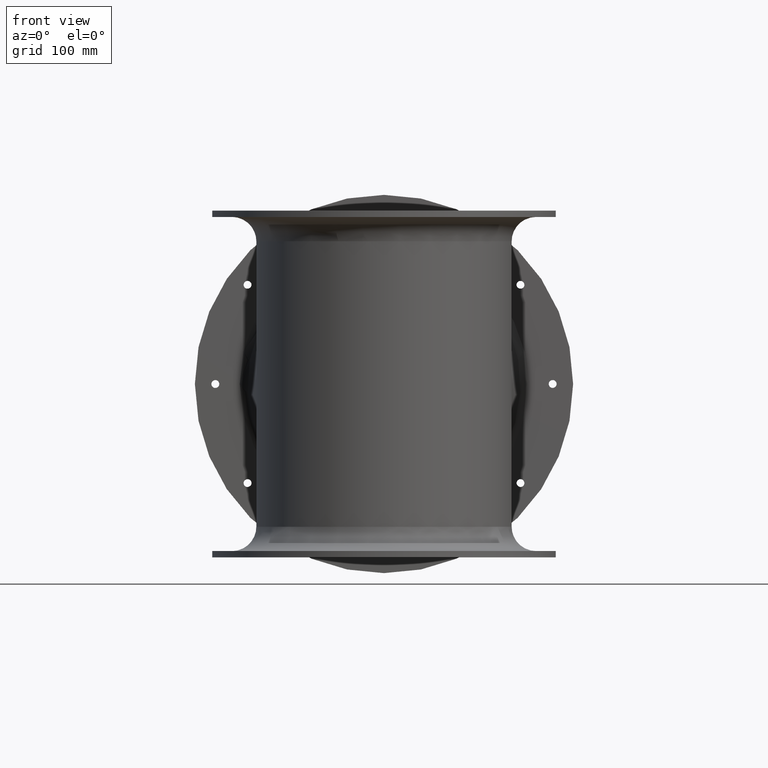
[diagram: clean part render]
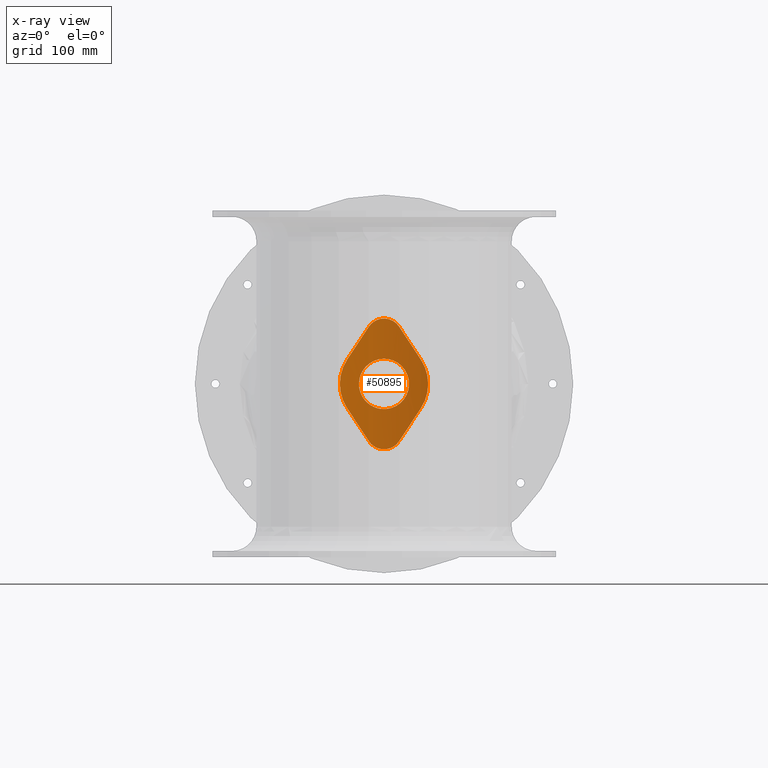
[diagram: x-ray — body ghosted, one internal face saturated and labeled with its STEP entity id]
A machine part, front view, then the same camera in x-ray: the body is ghosted and one INTERNAL B-rep face — a face not visible from any outside direction — is saturated and labeled: STEP entity #50895.
In plain terms, the highlighted cylindrical surface (partial cylindrical patch) has radius 191.2 mm, axis along (0, -0, 1).
Its self-contained STEP definition (entity closure, byte-faithful):
#522=ELLIPSE('',#55832,347.215496368038,191.2);
#523=ELLIPSE('',#55833,347.215496368038,191.2);
#524=ELLIPSE('',#55834,347.215496368039,191.2);
#525=ELLIPSE('',#55835,347.215496368039,191.2);
#12329=FACE_BOUND('',#18203,.T.);
#15057=FACE_OUTER_BOUND('',#18202,.T.);
#18202=EDGE_LOOP('',(#45034,#45035,#45036,#45037,#45038,#45039,#45040,#45041));
#18203=EDGE_LOOP('',(#45042));
#18576=B_SPLINE_CURVE_WITH_KNOTS('',3,(#104498,#104499,#104500,#104501,
#104502,#104503,#104504,#104505,#104506,#104507,#104508,#104509,#104510,
#104511,#104512,#104513,#104514,#104515,#104516,#104517,#104518,#104519,
#104520,#104521,#104522,#104523),.UNSPECIFIED.,.F.,.F.,(4,2,2,2,2,2,2,2,
2,2,2,2,4),(-15.7258442140392,-15.7013195879188,-15.1598895513452,-14.6184689818163,
-14.0770484122875,-13.5356278427586,-12.9942072732297,-12.4527867037009,
-11.911366134172,-11.3699455646432,-10.8285249951143,-10.2870949585407,
-10.2625703324203),.UNSPECIFIED.);
#18577=B_SPLINE_CURVE_WITH_KNOTS('',3,(#104527,#104528,#104529,#104530,
#104531,#104532,#104533,#104534,#104535,#104536,#104537,#104538,#104539,
#104540,#104541),.UNSPECIFIED.,.F.,.F.,(4,2,2,3,2,2,4),(-3.92995720711742,
-2.66477055484873,-1.33238527742436,0.,1.33238527742436,2.66477055484873,
3.92995720711743),.UNSPECIFIED.);
#18578=B_SPLINE_CURVE_WITH_KNOTS('',3,(#104545,#104546,#104547,#104548,
#104549,#104550,#104551,#104552,#104553,#104554,#104555,#104556,#104557,
#104558,#104559,#104560,#104561,#104562,#104563,#104564,#104565,#104566,
#104567,#104568,#104569,#104570),.UNSPECIFIED.,.F.,.F.,(4,2,2,2,2,2,2,2,
2,2,2,2,4),(1.5997654836005,1.62429010972085,2.16572014629447,2.70714071582333,
3.24856128535219,3.78998185488105,4.33140242440991,4.87282299393877,5.41424356346764,
5.9556641329965,6.49708470252536,7.03851473909898,7.06303936521932),
 .UNSPECIFIED.);
#18579=B_SPLINE_CURVE_WITH_KNOTS('',3,(#104574,#104575,#104576,#104577,
#104578,#104579,#104580,#104581,#104582,#104583,#104584,#104585,#104586,
#104587),.UNSPECIFIED.,.F.,.F.,(4,2,2,2,2,2,4),(-25.240756718416,-23.9755700661473,
-22.643184788723,-21.3107995112986,-19.9784142338742,-18.6460289564499,
-17.3808423041812),.UNSPECIFIED.);
#18580=B_SPLINE_CURVE_WITH_KNOTS('',3,(#104590,#104591,#104592,#104593,
#104594,#104595,#104596,#104597,#104598,#104599,#104600,#104601,#104602,
#104603,#104604,#104605,#104606,#104607,#104608,#104609,#104610,#104611,
#104612,#104613,#104614,#104615,#104616,#104617,#104618,#104619,#104620,
#104621,#104622,#104623,#104624,#104625,#104626,#104627,#104628,#104629,
#104630,#104631,#104632,#104633,#104634,#104635,#104636,#104637,#104638,
#104639,#104640,#104641,#104642,#104643,#104644,#104645,#104646,#104647,
#104648,#104649,#104650,#104651,#104652,#104653,#104654,#104655,#104656,
#104657,#104658,#104659,#104660,#104661,#104662,#104663,#104664,#104665),
 .UNSPECIFIED.,.T.,.F.,(4,3,3,3,3,3,3,3,3,3,3,3,3,3,3,3,3,3,3,3,3,3,3,3,
3,4),(-23.5765708296125,-21.8925300560688,-21.0505096692969,-20.629499475911,
-20.208489282525,-19.0857954334959,-17.9631015844667,-17.4017546599521,
-16.8404077354375,-15.7177138864084,-15.1563669618938,-14.5950200373792,
-14.0336731128646,-13.47232618835,-12.9109792638354,-12.3496323393209,-11.2269384902917,
-10.1042446412625,-8.98155079223334,-8.70087732997605,-7.85885694320418,
-6.73616309417501,-5.05212232063125,-3.3680815470875,-1.68404077354375,
3.52220355816086E-15),.UNSPECIFIED.);
#23130=VERTEX_POINT('',#104496);
#23131=VERTEX_POINT('',#104497);
#23132=VERTEX_POINT('',#104524);
#23133=VERTEX_POINT('',#104526);
#23134=VERTEX_POINT('',#104542);
#23135=VERTEX_POINT('',#104544);
#23136=VERTEX_POINT('',#104571);
#23137=VERTEX_POINT('',#104573);
#23138=VERTEX_POINT('',#104589);
#30292=EDGE_CURVE('',#23130,#23131,#18576,.T.);
#30293=EDGE_CURVE('',#23132,#23130,#522,.T.);
#30294=EDGE_CURVE('',#23133,#23132,#18577,.T.);
#30295=EDGE_CURVE('',#23134,#23133,#523,.T.);
#30296=EDGE_CURVE('',#23135,#23134,#18578,.F.);
#30297=EDGE_CURVE('',#23136,#23135,#524,.T.);
#30298=EDGE_CURVE('',#23137,#23136,#18579,.T.);
#30299=EDGE_CURVE('',#23131,#23137,#525,.T.);
#30300=EDGE_CURVE('',#23138,#23138,#18580,.T.);
#45034=ORIENTED_EDGE('',*,*,#30292,.F.);
#45035=ORIENTED_EDGE('',*,*,#30293,.F.);
#45036=ORIENTED_EDGE('',*,*,#30294,.F.);
#45037=ORIENTED_EDGE('',*,*,#30295,.F.);
#45038=ORIENTED_EDGE('',*,*,#30296,.F.);
#45039=ORIENTED_EDGE('',*,*,#30297,.F.);
#45040=ORIENTED_EDGE('',*,*,#30298,.F.);
#45041=ORIENTED_EDGE('',*,*,#30299,.F.);
#45042=ORIENTED_EDGE('',*,*,#30300,.F.);
#45460=CYLINDRICAL_SURFACE('',#55831,191.2);
#50895=ADVANCED_FACE('',(#15057,#12329),#45460,.T.);
#55831=AXIS2_PLACEMENT_3D('',#104495,#68220,#68221);
#55832=AXIS2_PLACEMENT_3D('',#104525,#68222,#68223);
#55833=AXIS2_PLACEMENT_3D('',#104543,#68224,#68225);
#55834=AXIS2_PLACEMENT_3D('',#104572,#68226,#68227);
#55835=AXIS2_PLACEMENT_3D('',#104588,#68228,#68229);
#68220=DIRECTION('center_axis',(4.24784385173625E-16,-3.5310146125538E-16,
1.));
#68221=DIRECTION('ref_axis',(-0.392259414225942,-0.9198546363155,-1.58176342125006E-16));
#68222=DIRECTION('center_axis',(0.834725237561572,-6.14153817460307E-16,
0.550666666666667));
#68223=DIRECTION('ref_axis',(-0.550666666666667,-4.34391151563603E-17,0.834725237561572));
#68224=DIRECTION('center_axis',(0.834725237561571,-2.25271408131048E-16,
-0.550666666666667));
#68225=DIRECTION('ref_axis',(-0.550666666666667,5.4604628710311E-16,-0.834725237561571));
#68226=DIRECTION('center_axis',(-0.834725237561572,6.14153817460307E-16,
-0.550666666666666));
#68227=DIRECTION('ref_axis',(-0.550666666666666,-4.34391151563606E-17,0.834725237561572));
#68228=DIRECTION('center_axis',(-0.834725237561572,2.25271408131048E-16,
0.550666666666667));
#68229=DIRECTION('ref_axis',(-0.550666666666667,5.4604628710311E-16,-0.834725237561572));
#104495=CARTESIAN_POINT('Origin',(-495.000607936234,506.355165407791,-216.117215801391));
#104496=CARTESIAN_POINT('',(-471.043993618217,696.04839309507,-125.313082468058));
#104497=CARTESIAN_POINT('',(-518.957222254251,696.04839309507,-125.313082468058));
#104498=CARTESIAN_POINT('Ctrl Pts',(-471.043993618217,696.04839309507,-125.313082468058));
#104499=CARTESIAN_POINT('Ctrl Pts',(-471.091124781442,696.054345353427,
-125.241638936424));
#104500=CARTESIAN_POINT('Ctrl Pts',(-471.138546150531,696.060316416273,
-125.170450796327));
#104501=CARTESIAN_POINT('Ctrl Pts',(-472.239478720824,696.198515991378,
-123.533635918474));
#104502=CARTESIAN_POINT('Ctrl Pts',(-473.434100190933,696.339279377426,
-122.095794306584));
#104503=CARTESIAN_POINT('Ctrl Pts',(-475.979164190681,696.610947022215,
-119.550730306837));
#104504=CARTESIAN_POINT('Ctrl Pts',(-477.416995522027,696.751399392685,
-118.35611125586));
#104505=CARTESIAN_POINT('Ctrl Pts',(-480.548775098363,697.014688822652,
-116.249649910922));
#104506=CARTESIAN_POINT('Ctrl Pts',(-482.242652831637,697.137262449949,
-115.337669868063));
#104507=CARTESIAN_POINT('Ctrl Pts',(-485.777403112409,697.340783878877,
-113.872346526241));
#104508=CARTESIAN_POINT('Ctrl Pts',(-487.621142512191,697.421713861934,
-113.31783753961));
#104509=CARTESIAN_POINT('Ctrl Pts',(-491.330360119076,697.528939051261,
-112.590189621852));
#104510=CARTESIAN_POINT('Ctrl Pts',(-493.195872704471,697.555165407791,
-112.417215801391));
#104511=CARTESIAN_POINT('Ctrl Pts',(-496.805343167997,697.555165407791,
-112.417215801391));
#104512=CARTESIAN_POINT('Ctrl Pts',(-498.670855753392,697.528939051261,
-112.590189621852));
#104513=CARTESIAN_POINT('Ctrl Pts',(-502.380073360277,697.421713861934,
-113.31783753961));
#104514=CARTESIAN_POINT('Ctrl Pts',(-504.223812760059,697.340783878877,
-113.872346526241));
#104515=CARTESIAN_POINT('Ctrl Pts',(-507.758563040832,697.137262449949,
-115.337669868063));
#104516=CARTESIAN_POINT('Ctrl Pts',(-509.452440774105,697.014688822652,
-116.249649910922));
#104517=CARTESIAN_POINT('Ctrl Pts',(-512.584220350441,696.751399392685,
-118.35611125586));
#104518=CARTESIAN_POINT('Ctrl Pts',(-514.022051681788,696.610947022215,
-119.550730306837));
#104519=CARTESIAN_POINT('Ctrl Pts',(-516.567115681535,696.339279377426,
-122.095794306584));
#104520=CARTESIAN_POINT('Ctrl Pts',(-517.761737151644,696.198515991378,
-123.533635918474));
#104521=CARTESIAN_POINT('Ctrl Pts',(-518.862669721937,696.060316416273,
-125.170450796327));
#104522=CARTESIAN_POINT('Ctrl Pts',(-518.910091091026,696.054345353427,
-125.241638936424));
#104523=CARTESIAN_POINT('Ctrl Pts',(-518.957222254251,696.04839309507,-125.313082468058));
#104524=CARTESIAN_POINT('',(-436.569841306924,688.408139871575,-177.570549134724));
#104525=CARTESIAN_POINT('Origin',(-495.000607936234,506.355165407791,-88.9985717335945));
#104526=CARTESIAN_POINT('',(-436.569841306924,688.408139871575,-254.663882468058));
#104527=CARTESIAN_POINT('Ctrl Pts',(-436.569841306924,688.408139871575,
-254.663882468058));
#104528=CARTESIAN_POINT('Ctrl Pts',(-434.169100265967,687.637610634605,
-251.024731495171));
#104529=CARTESIAN_POINT('Ctrl Pts',(-432.0780835002,686.91392113273,-247.10685490353));
#104530=CARTESIAN_POINT('Ctrl Pts',(-428.584676256888,685.659346107311,
-238.71506629148));
#104531=CARTESIAN_POINT('Ctrl Pts',(-427.222383647777,685.141278834678,
-234.21469724019));
#104532=CARTESIAN_POINT('Ctrl Pts',(-425.4300747972,684.451495977697,-225.136497316975));
#104533=CARTESIAN_POINT('Ctrl Pts',(-425.000607936234,684.280543024364,
-220.558500059472));
#104534=CARTESIAN_POINT('Ctrl Pts',(-425.000607936234,684.280543024364,
-216.117215801391));
#104535=CARTESIAN_POINT('Ctrl Pts',(-425.000607936234,684.280543024364,
-211.67593154331));
#104536=CARTESIAN_POINT('Ctrl Pts',(-425.4300747972,684.451495977697,-207.097934285807));
#104537=CARTESIAN_POINT('Ctrl Pts',(-427.222383647777,685.141278834678,
-198.019734362593));
#104538=CARTESIAN_POINT('Ctrl Pts',(-428.584676256888,685.659346107311,
-193.519365311302));
#104539=CARTESIAN_POINT('Ctrl Pts',(-432.0780835002,686.91392113273,-185.127576699252));
#104540=CARTESIAN_POINT('Ctrl Pts',(-434.169100265967,687.637610634605,
-181.209700107611));
#104541=CARTESIAN_POINT('Ctrl Pts',(-436.569841306924,688.408139871575,
-177.570549134724));
#104542=CARTESIAN_POINT('',(-471.043993618217,696.04839309507,-306.921349134724));
#104543=CARTESIAN_POINT('Origin',(-495.000607936234,506.355165407791,-343.235859869188));
#104544=CARTESIAN_POINT('',(-518.957222254251,696.04839309507,-306.921349134724));
#104545=CARTESIAN_POINT('Ctrl Pts',(-471.043993618217,696.04839309507,-306.921349134724));
#104546=CARTESIAN_POINT('Ctrl Pts',(-471.091124781442,696.054345353427,
-306.992792666358));
#104547=CARTESIAN_POINT('Ctrl Pts',(-471.138546150531,696.060316416273,
-307.063980806455));
#104548=CARTESIAN_POINT('Ctrl Pts',(-472.239478720824,696.198515991378,
-308.700795684308));
#104549=CARTESIAN_POINT('Ctrl Pts',(-473.434100190933,696.339279377426,
-310.138637296198));
#104550=CARTESIAN_POINT('Ctrl Pts',(-475.979164190681,696.610947022215,
-312.683701295945));
#104551=CARTESIAN_POINT('Ctrl Pts',(-477.416995522027,696.751399392685,
-313.878320346922));
#104552=CARTESIAN_POINT('Ctrl Pts',(-480.548775098363,697.014688822652,
-315.98478169186));
#104553=CARTESIAN_POINT('Ctrl Pts',(-482.242652831637,697.137262449949,
-316.896761734719));
#104554=CARTESIAN_POINT('Ctrl Pts',(-485.777403112409,697.340783878877,
-318.362085076541));
#104555=CARTESIAN_POINT('Ctrl Pts',(-487.621142512191,697.421713861934,
-318.916594063172));
#104556=CARTESIAN_POINT('Ctrl Pts',(-491.330360119076,697.528939051261,
-319.644241980931));
#104557=CARTESIAN_POINT('Ctrl Pts',(-493.195872704471,697.555165407791,
-319.817215801391));
#104558=CARTESIAN_POINT('Ctrl Pts',(-496.805343167997,697.555165407791,
-319.817215801391));
#104559=CARTESIAN_POINT('Ctrl Pts',(-498.670855753392,697.528939051261,
-319.64424198093));
#104560=CARTESIAN_POINT('Ctrl Pts',(-502.380073360278,697.421713861934,
-318.916594063172));
#104561=CARTESIAN_POINT('Ctrl Pts',(-504.223812760059,697.340783878877,
-318.362085076541));
#104562=CARTESIAN_POINT('Ctrl Pts',(-507.758563040832,697.137262449949,
-316.896761734719));
#104563=CARTESIAN_POINT('Ctrl Pts',(-509.452440774105,697.014688822652,
-315.98478169186));
#104564=CARTESIAN_POINT('Ctrl Pts',(-512.584220350441,696.751399392685,
-313.878320346922));
#104565=CARTESIAN_POINT('Ctrl Pts',(-514.022051681788,696.610947022215,
-312.683701295945));
#104566=CARTESIAN_POINT('Ctrl Pts',(-516.567115681535,696.339279377426,
-310.138637296198));
#104567=CARTESIAN_POINT('Ctrl Pts',(-517.761737151644,696.198515991378,
-308.700795684308));
#104568=CARTESIAN_POINT('Ctrl Pts',(-518.862669721937,696.060316416273,
-307.063980806455));
#104569=CARTESIAN_POINT('Ctrl Pts',(-518.910091091026,696.054345353427,
-306.992792666358));
#104570=CARTESIAN_POINT('Ctrl Pts',(-518.957222254251,696.04839309507,-306.921349134724));
#104571=CARTESIAN_POINT('',(-553.431374565544,688.408139871575,-254.663882468058));
#104572=CARTESIAN_POINT('Origin',(-495.000607936234,506.355165407791,-343.235859869188));
#104573=CARTESIAN_POINT('',(-553.431374565544,688.408139871575,-177.570549134724));
#104574=CARTESIAN_POINT('Ctrl Pts',(-553.431374565544,688.408139871575,
-177.570549134724));
#104575=CARTESIAN_POINT('Ctrl Pts',(-555.832115606501,687.637610634605,
-181.209700107611));
#104576=CARTESIAN_POINT('Ctrl Pts',(-557.923132372268,686.91392113273,-185.127576699252));
#104577=CARTESIAN_POINT('Ctrl Pts',(-561.41653961558,685.659346107311,-193.519365311302));
#104578=CARTESIAN_POINT('Ctrl Pts',(-562.778832224692,685.141278834678,
-198.019734362593));
#104579=CARTESIAN_POINT('Ctrl Pts',(-564.571141075268,684.451495977698,
-207.097934285807));
#104580=CARTESIAN_POINT('Ctrl Pts',(-565.000607936234,684.280543024364,
-211.67593154331));
#104581=CARTESIAN_POINT('Ctrl Pts',(-565.000607936234,684.280543024364,
-220.558500059472));
#104582=CARTESIAN_POINT('Ctrl Pts',(-564.571141075268,684.451495977697,
-225.136497316975));
#104583=CARTESIAN_POINT('Ctrl Pts',(-562.778832224692,685.141278834678,
-234.214697240189));
#104584=CARTESIAN_POINT('Ctrl Pts',(-561.41653961558,685.659346107311,-238.71506629148));
#104585=CARTESIAN_POINT('Ctrl Pts',(-557.923132372268,686.91392113273,-247.10685490353));
#104586=CARTESIAN_POINT('Ctrl Pts',(-555.832115606501,687.637610634605,
-251.024731495171));
#104587=CARTESIAN_POINT('Ctrl Pts',(-553.431374565544,688.408139871575,
-254.663882468058));
#104588=CARTESIAN_POINT('Origin',(-495.000607936234,506.355165407791,-88.9985717335944));
#104589=CARTESIAN_POINT('',(-534.794138968253,693.368823793076,-216.117215941165));
#104590=CARTESIAN_POINT('Ctrl Pts',(-534.794692681687,693.368188535251,
-216.118976734608));
#104591=CARTESIAN_POINT('Ctrl Pts',(-534.794022292444,693.368331185885,
-210.138491116803));
#104592=CARTESIAN_POINT('Ctrl Pts',(-533.444305479767,693.669027520419,
-204.167599981244));
#104593=CARTESIAN_POINT('Ctrl Pts',(-530.8527664473,694.16374543037,-198.760279022105));
#104594=CARTESIAN_POINT('Ctrl Pts',(-529.556996931066,694.411104385345,
-196.056618542535));
#104595=CARTESIAN_POINT('Ctrl Pts',(-527.950215654826,694.704037847019,
-193.49385060707));
#104596=CARTESIAN_POINT('Ctrl Pts',(-526.095244044157,695.009779995709,
-191.157420804148));
#104597=CARTESIAN_POINT('Ctrl Pts',(-525.167758238822,695.162651070054,
-189.989205902687));
#104598=CARTESIAN_POINT('Ctrl Pts',(-524.17821929332,695.318746930429,-188.877575534362));
#104599=CARTESIAN_POINT('Ctrl Pts',(-523.12763257052,695.47499642829,-187.822507194072));
#104600=CARTESIAN_POINT('Ctrl Pts',(-522.07704584772,695.631245926152,-186.767438853781));
#104601=CARTESIAN_POINT('Ctrl Pts',(-520.965408420739,695.787596203846,
-185.768932541525));
#104602=CARTESIAN_POINT('Ctrl Pts',(-519.801992166788,695.939793846513,
-184.836843039857));
#104603=CARTESIAN_POINT('Ctrl Pts',(-516.69954882292,696.345654226959,-182.35127103541));
#104604=CARTESIAN_POINT('Ctrl Pts',(-513.228671258727,696.720273568968,
-180.337996350701));
#104605=CARTESIAN_POINT('Ctrl Pts',(-509.538479811725,697.001671489942,
-178.882315971917));
#104606=CARTESIAN_POINT('Ctrl Pts',(-505.848288364722,697.283069410917,
-177.426635593134));
#104607=CARTESIAN_POINT('Ctrl Pts',(-501.93870445453,697.470207646161,-176.528549520277));
#104608=CARTESIAN_POINT('Ctrl Pts',(-497.982349390605,697.531914040828,
-176.229385620727));
#104609=CARTESIAN_POINT('Ctrl Pts',(-496.004171858642,697.562767238161,
-176.079803670953));
#104610=CARTESIAN_POINT('Ctrl Pts',(-494.01429587789,697.562859125763,-176.079952264505));
#104611=CARTESIAN_POINT('Ctrl Pts',(-492.03591089026,697.532179118712,-176.228530439968));
#104612=CARTESIAN_POINT('Ctrl Pts',(-490.05752590263,697.501499111661,-176.377108615431));
#104613=CARTESIAN_POINT('Ctrl Pts',(-488.090652385943,697.440081791082,
-176.674116372805));
#104614=CARTESIAN_POINT('Ctrl Pts',(-486.155523513148,697.350465039872,
-177.117848084834));
#104615=CARTESIAN_POINT('Ctrl Pts',(-482.285265767558,697.171231537452,
-178.005311508891));
#104616=CARTESIAN_POINT('Ctrl Pts',(-478.542044865513,696.876975656643,
-179.479670751568));
#104617=CARTESIAN_POINT('Ctrl Pts',(-475.09612246301,696.516285140628,-181.480800413208));
#104618=CARTESIAN_POINT('Ctrl Pts',(-473.373161261759,696.33593988262,-182.481365244028));
#104619=CARTESIAN_POINT('Ctrl Pts',(-471.724463601479,696.139522469338,
-183.613622679589));
#104620=CARTESIAN_POINT('Ctrl Pts',(-470.175293534686,695.93666177509,-184.855798509388));
#104621=CARTESIAN_POINT('Ctrl Pts',(-468.626123467893,695.733801080842,
-186.097974339187));
#104622=CARTESIAN_POINT('Ctrl Pts',(-467.176459848998,695.524714310954,
-187.450068563225));
#104623=CARTESIAN_POINT('Ctrl Pts',(-465.828084698016,695.316547409288,
-188.912677309359));
#104624=CARTESIAN_POINT('Ctrl Pts',(-464.479709547034,695.108380507622,
-190.375286055492));
#104625=CARTESIAN_POINT('Ctrl Pts',(-463.2326457325,694.900978302981,-191.948409323723));
#104626=CARTESIAN_POINT('Ctrl Pts',(-462.115098933781,694.705857728392,
-193.595722369336));
#104627=CARTESIAN_POINT('Ctrl Pts',(-460.997552135063,694.510737153802,
-195.243035414948));
#104628=CARTESIAN_POINT('Ctrl Pts',(-460.009484108467,694.328107363813,
-196.964538237944));
#104629=CARTESIAN_POINT('Ctrl Pts',(-459.14998665988,694.164038877868,-198.760882866094));
#104630=CARTESIAN_POINT('Ctrl Pts',(-458.290489211293,693.999970391923,
-200.557227494244));
#104631=CARTESIAN_POINT('Ctrl Pts',(-457.559575148068,693.854410543505,
-202.428413927549));
#104632=CARTESIAN_POINT('Ctrl Pts',(-456.973309850914,693.735432779599,
-204.338458530277));
#104633=CARTESIAN_POINT('Ctrl Pts',(-456.387044553761,693.616455015693,
-206.248503133004));
#104634=CARTESIAN_POINT('Ctrl Pts',(-455.945410826765,693.524131762144,
-208.197405905154));
#104635=CARTESIAN_POINT('Ctrl Pts',(-455.651201558886,693.462258319178,
-210.169035304584));
#104636=CARTESIAN_POINT('Ctrl Pts',(-455.062783023128,693.338511433246,
-214.112294103445));
#104637=CARTESIAN_POINT('Ctrl Pts',(-455.063613978294,693.338696346811,
-218.146459411429));
#104638=CARTESIAN_POINT('Ctrl Pts',(-455.654291759909,693.462908174766,
-222.088846749668));
#104639=CARTESIAN_POINT('Ctrl Pts',(-456.244969541524,693.587120002722,
-226.031234087907));
#104640=CARTESIAN_POINT('Ctrl Pts',(-457.425573850294,693.83491176271,-229.881843456402));
#104641=CARTESIAN_POINT('Ctrl Pts',(-459.154612098541,694.164921763535,
-233.482515531004));
#104642=CARTESIAN_POINT('Ctrl Pts',(-460.883650346788,694.49493176436,-237.083187605606));
#104643=CARTESIAN_POINT('Ctrl Pts',(-463.161507900536,694.905236578921,
-240.433922386315));
#104644=CARTESIAN_POINT('Ctrl Pts',(-465.853207897095,695.3204243073,-243.348212093373));
#104645=CARTESIAN_POINT('Ctrl Pts',(-466.526132896235,695.424221239394,
-244.076784520137));
#104646=CARTESIAN_POINT('Ctrl Pts',(-467.224920980853,695.528335634369,
-244.778079129799));
#104647=CARTESIAN_POINT('Ctrl Pts',(-467.950433733987,695.632021033692,
-245.4535304686));
#104648=CARTESIAN_POINT('Ctrl Pts',(-470.126971993387,695.943077231661,
-247.479884485003));
#104649=CARTESIAN_POINT('Ctrl Pts',(-472.544154124585,696.249532307442,
-249.273649063663));
#104650=CARTESIAN_POINT('Ctrl Pts',(-475.122959165875,696.519092269229,
-250.770533640344));
#104651=CARTESIAN_POINT('Ctrl Pts',(-478.561365887595,696.878505551611,
-252.766379742584));
#104652=CARTESIAN_POINT('Ctrl Pts',(-482.287068229067,697.171208851688,
-254.234439174637));
#104653=CARTESIAN_POINT('Ctrl Pts',(-486.150289883096,697.350222596081,
-255.117084353121));
#104654=CARTESIAN_POINT('Ctrl Pts',(-491.94512236414,697.618743212672,-256.441052120847));
#104655=CARTESIAN_POINT('Ctrl Pts',(-498.05016113295,697.619235278595,-256.447837818042));
#104656=CARTESIAN_POINT('Ctrl Pts',(-503.858056832783,697.349892034065,
-255.115332502639));
#104657=CARTESIAN_POINT('Ctrl Pts',(-509.665952532616,697.080548789534,
-253.782827187236));
#104658=CARTESIAN_POINT('Ctrl Pts',(-515.177255018753,696.54551079002,-251.111030859235));
#104659=CARTESIAN_POINT('Ctrl Pts',(-519.830547301695,695.936056088016,
-247.377611237058));
#104660=CARTESIAN_POINT('Ctrl Pts',(-524.483839584637,695.326601386012,
-243.644191614881));
#104661=CARTESIAN_POINT('Ctrl Pts',(-528.280755063819,694.654812817518,
-238.849148698528));
#104662=CARTESIAN_POINT('Ctrl Pts',(-530.858203370365,694.162707454649,
-233.462966382911));
#104663=CARTESIAN_POINT('Ctrl Pts',(-533.435651676912,693.670602091779,
-228.076784067294));
#104664=CARTESIAN_POINT('Ctrl Pts',(-534.79536307093,693.368045884616,-222.099462352412));
#104665=CARTESIAN_POINT('Ctrl Pts',(-534.794692681687,693.368188535251,
-216.118976734608));